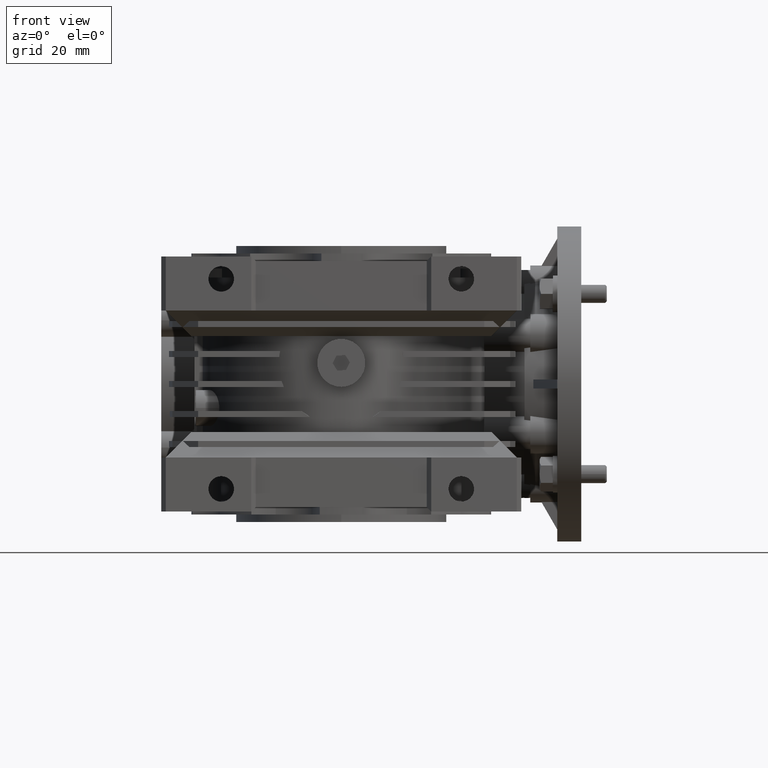
[diagram: clean part render]
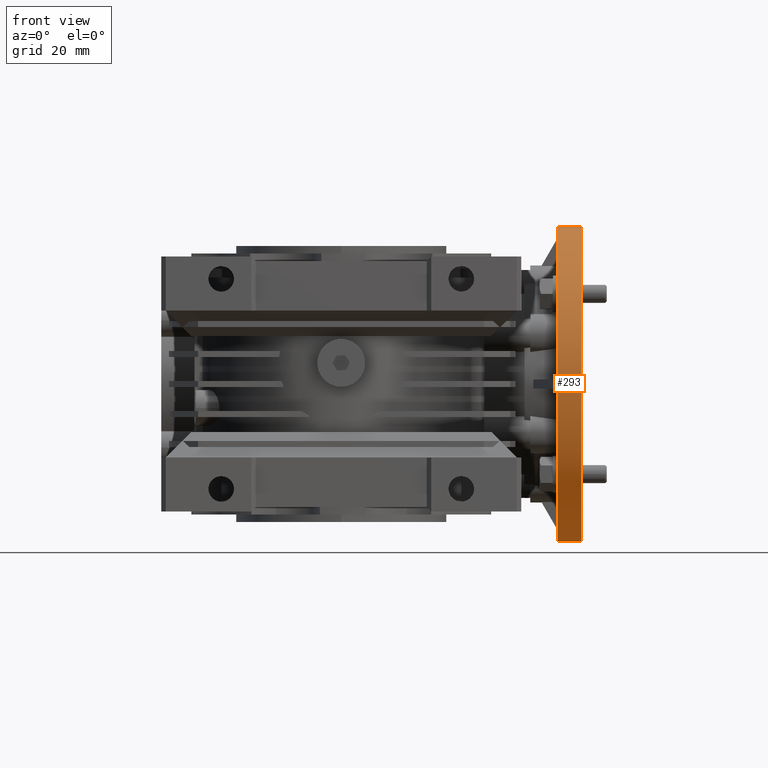
[diagram: same view with one face highlighted and labeled with its STEP entity id]
A machine part, front view. The second image highlights one B-rep face of the part: STEP entity #293.
In plain terms, the highlighted cylindrical surface (partial cylindrical patch) has radius 52.5 mm, axis along (-1, 0, 0).
Its self-contained STEP definition (entity closure, byte-faithful):
#114 = ORIENTED_EDGE ( 'NONE', *, *, #31930, .T. ) ;
#293 = ADVANCED_FACE ( 'NONE', ( #12049 ), #11681, .T. ) ;
#963 = DIRECTION ( 'NONE',  ( -1.000000000000000000, 0.000000000000000000, 0.000000000000000000 ) ) ;
#2174 = AXIS2_PLACEMENT_3D ( 'NONE', #33686, #33159, #8460 ) ;
#3314 = LINE ( 'NONE', #12303, #27326 ) ;
#4886 = CIRCLE ( 'NONE', #35407, 52.50000000000000000 ) ;
#5206 = ORIENTED_EDGE ( 'NONE', *, *, #27739, .T. ) ;
#6676 = CARTESIAN_POINT ( 'NONE',  ( 80.00000000000000000, 50.00000000000000000, 52.50000000000000000 ) ) ;
#8460 = DIRECTION ( 'NONE',  ( 0.000000000000000000, 0.000000000000000000, 1.000000000000000000 ) ) ;
#9267 = ORIENTED_EDGE ( 'NONE', *, *, #14974, .F. ) ;
#11616 = EDGE_LOOP ( 'NONE', ( #9267, #114, #12818, #5206 ) ) ;
#11681 = CYLINDRICAL_SURFACE ( 'NONE', #2174, 52.50000000000000000 ) ;
#12049 = FACE_OUTER_BOUND ( 'NONE', #11616, .T. ) ;
#12111 = AXIS2_PLACEMENT_3D ( 'NONE', #29841, #15965, #13251 ) ;
#12303 = CARTESIAN_POINT ( 'NONE',  ( 80.00000000000000000, 50.00000000000000000, 52.50000000000000000 ) ) ;
#12818 = ORIENTED_EDGE ( 'NONE', *, *, #22292, .T. ) ;
#13028 = CARTESIAN_POINT ( 'NONE',  ( 72.00000000000000000, 50.00000000000000711, -52.50000000000000000 ) ) ;
#13251 = DIRECTION ( 'NONE',  ( 0.000000000000000000, 0.000000000000000000, 1.000000000000000000 ) ) ;
#13277 = CIRCLE ( 'NONE', #12111, 52.50000000000000000 ) ;
#14974 = EDGE_CURVE ( 'NONE', #21811, #30097, #31420, .T. ) ;
#15965 = DIRECTION ( 'NONE',  ( -1.000000000000000000, 0.000000000000000000, 0.000000000000000000 ) ) ;
#17202 = DIRECTION ( 'NONE',  ( -1.000000000000000000, 0.000000000000000000, 0.000000000000000000 ) ) ;
#21811 = VERTEX_POINT ( 'NONE', #34001 ) ;
#22089 = VECTOR ( 'NONE', #17202, 1000.000000000000000 ) ;
#22292 = EDGE_CURVE ( 'NONE', #27638, #27800, #3314, .T. ) ;
#25654 = CARTESIAN_POINT ( 'NONE',  ( 80.00000000000000000, 50.00000000000000711, -52.50000000000000000 ) ) ;
#27326 = VECTOR ( 'NONE', #963, 1000.000000000000000 ) ;
#27638 = VERTEX_POINT ( 'NONE', #6676 ) ;
#27739 = EDGE_CURVE ( 'NONE', #27800, #30097, #4886, .T. ) ;
#27800 = VERTEX_POINT ( 'NONE', #30791 ) ;
#29841 = CARTESIAN_POINT ( 'NONE',  ( 80.00000000000000000, 50.00000000000000000, 0.000000000000000000 ) ) ;
#30097 = VERTEX_POINT ( 'NONE', #13028 ) ;
#30791 = CARTESIAN_POINT ( 'NONE',  ( 72.00000000000000000, 50.00000000000000000, 52.50000000000000000 ) ) ;
#31420 = LINE ( 'NONE', #25654, #22089 ) ;
#31930 = EDGE_CURVE ( 'NONE', #21811, #27638, #13277, .T. ) ;
#32282 = DIRECTION ( 'NONE',  ( 1.000000000000000000, 0.000000000000000000, 0.000000000000000000 ) ) ;
#33159 = DIRECTION ( 'NONE',  ( -1.000000000000000000, 0.000000000000000000, 0.000000000000000000 ) ) ;
#33686 = CARTESIAN_POINT ( 'NONE',  ( 80.00000000000000000, 50.00000000000000000, 0.000000000000000000 ) ) ;
#34001 = CARTESIAN_POINT ( 'NONE',  ( 80.00000000000000000, 50.00000000000000711, -52.50000000000000000 ) ) ;
#35323 = CARTESIAN_POINT ( 'NONE',  ( 72.00000000000000000, 50.00000000000000000, 0.000000000000000000 ) ) ;
#35407 = AXIS2_PLACEMENT_3D ( 'NONE', #35323, #32282, #35693 ) ;
#35693 = DIRECTION ( 'NONE',  ( 0.000000000000000000, 0.000000000000000000, 1.000000000000000000 ) ) ;